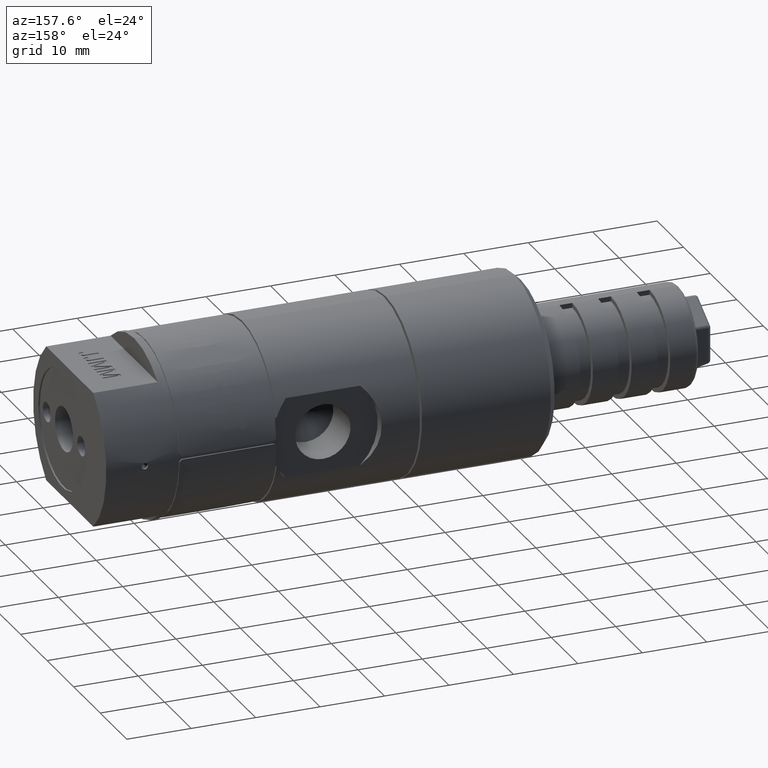
[diagram: clean part render]
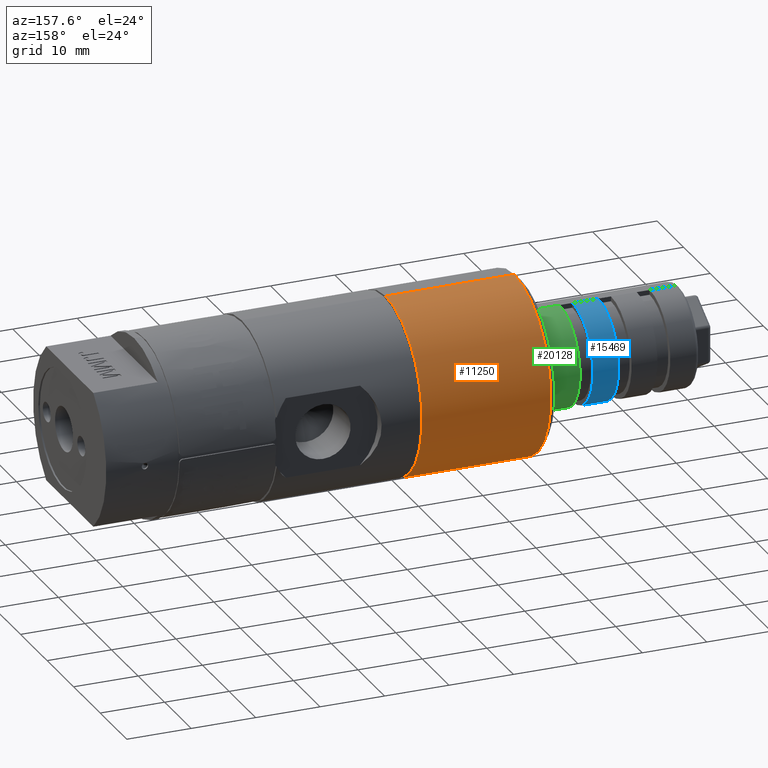
[diagram: same view with three faces highlighted in distinct colors, each labeled with its STEP entity id]
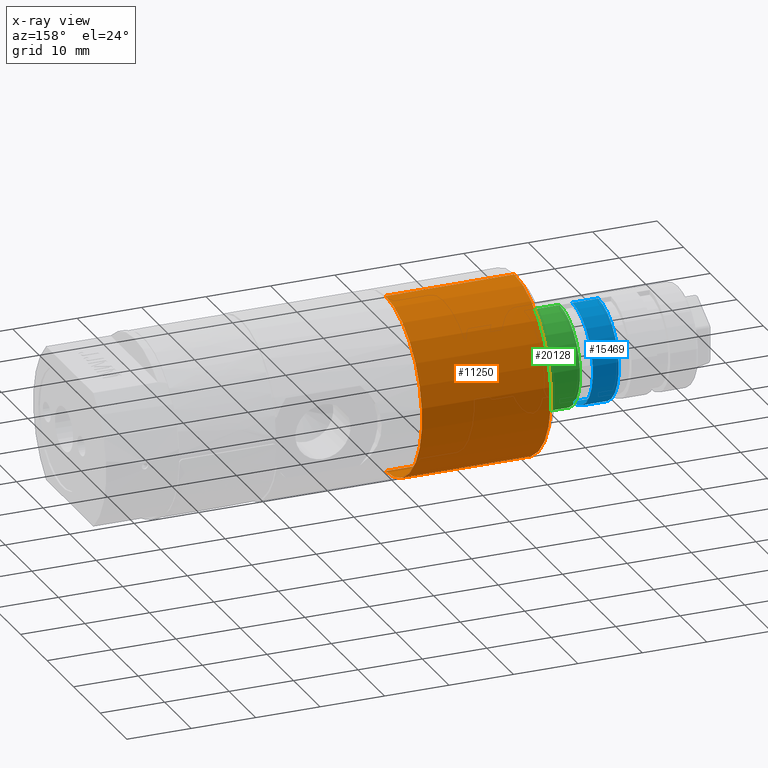
[diagram: x-ray of the same camera — body ghosted, the three highlighted faces saturated]
A machine part, auxiliary view with three faces highlighted in distinct colors.
The next image is the same camera in x-ray (body ghosted, the three faces saturated) — at least one of them is partly hidden behind the body in this view.
Their STEP definitions:

[orange] entity #11250 — the highlighted cylindrical surface (partial cylindrical patch) has radius 13.75 mm, axis along (1, 0, 0).
#1196 = VERTEX_POINT ( 'NONE', #4997 ) ;
#1318 = ORIENTED_EDGE ( 'NONE', *, *, #5313, .F. ) ;
#1971 = LINE ( 'NONE', #17541, #11476 ) ;
#2315 = CARTESIAN_POINT ( 'NONE',  ( -49.00000000000000000, 0.0000000000000000000, -13.75000000000000000 ) ) ;
#3284 = LINE ( 'NONE', #12969, #10447 ) ;
#4316 = DIRECTION ( 'NONE',  ( 1.000000000000000000, -0.0000000000000000000, -0.0000000000000000000 ) ) ;
#4997 = CARTESIAN_POINT ( 'NONE',  ( -69.00000000000000000, 1.683889348827610700E-015, 13.75000000000000000 ) ) ;
#5161 = VERTEX_POINT ( 'NONE', #2315 ) ;
#5313 = EDGE_CURVE ( 'NONE', #20135, #5161, #1971, .T. ) ;
#5463 = ORIENTED_EDGE ( 'NONE', *, *, #14910, .T. ) ;
#6065 = AXIS2_PLACEMENT_3D ( 'NONE', #9580, #19516, #14570 ) ;
#6424 = CARTESIAN_POINT ( 'NONE',  ( -69.00000000000000000, 0.0000000000000000000, -13.75000000000000000 ) ) ;
#9474 = DIRECTION ( 'NONE',  ( 0.0000000000000000000, 0.0000000000000000000, -1.000000000000000000 ) ) ;
#9580 = CARTESIAN_POINT ( 'NONE',  ( -49.00000000000000000, 0.0000000000000000000, 0.0000000000000000000 ) ) ;
#10239 = ORIENTED_EDGE ( 'NONE', *, *, #18066, .T. ) ;
#10447 = VECTOR ( 'NONE', #20926, 1000.000000000000000 ) ;
#10777 = CARTESIAN_POINT ( 'NONE',  ( -49.00000000000000000, 1.683889348827610700E-015, 13.75000000000000000 ) ) ;
#10902 = AXIS2_PLACEMENT_3D ( 'NONE', #19099, #14458, #9474 ) ;
#11250 = ADVANCED_FACE ( 'NONE', ( #14283 ), #13227, .T. ) ;
#11476 = VECTOR ( 'NONE', #12657, 1000.000000000000000 ) ;
#12143 = EDGE_LOOP ( 'NONE', ( #5463, #10239, #16101, #1318 ) ) ;
#12356 = CIRCLE ( 'NONE', #10902, 13.75000000000000000 ) ;
#12657 = DIRECTION ( 'NONE',  ( 1.000000000000000000, 0.0000000000000000000, 0.0000000000000000000 ) ) ;
#12969 = CARTESIAN_POINT ( 'NONE',  ( -49.00000000000000000, 1.683889348827610700E-015, 13.75000000000000000 ) ) ;
#13227 = CYLINDRICAL_SURFACE ( 'NONE', #6065, 13.75000000000000000 ) ;
#14176 = CARTESIAN_POINT ( 'NONE',  ( -69.00000000000000000, 0.0000000000000000000, 0.0000000000000000000 ) ) ;
#14219 = AXIS2_PLACEMENT_3D ( 'NONE', #14176, #4316, #17690 ) ;
#14283 = FACE_OUTER_BOUND ( 'NONE', #12143, .T. ) ;
#14458 = DIRECTION ( 'NONE',  ( 1.000000000000000000, 0.0000000000000000000, 0.0000000000000000000 ) ) ;
#14570 = DIRECTION ( 'NONE',  ( 0.0000000000000000000, 0.0000000000000000000, -1.000000000000000000 ) ) ;
#14831 = EDGE_CURVE ( 'NONE', #5161, #19063, #12356, .T. ) ;
#14910 = EDGE_CURVE ( 'NONE', #20135, #1196, #19541, .T. ) ;
#16101 = ORIENTED_EDGE ( 'NONE', *, *, #14831, .F. ) ;
#17541 = CARTESIAN_POINT ( 'NONE',  ( -49.00000000000000000, 0.0000000000000000000, -13.75000000000000000 ) ) ;
#17690 = DIRECTION ( 'NONE',  ( 0.0000000000000000000, 0.0000000000000000000, 1.000000000000000000 ) ) ;
#18066 = EDGE_CURVE ( 'NONE', #1196, #19063, #3284, .T. ) ;
#19063 = VERTEX_POINT ( 'NONE', #10777 ) ;
#19099 = CARTESIAN_POINT ( 'NONE',  ( -49.00000000000000000, 0.0000000000000000000, 0.0000000000000000000 ) ) ;
#19516 = DIRECTION ( 'NONE',  ( 1.000000000000000000, 0.0000000000000000000, 0.0000000000000000000 ) ) ;
#19541 = CIRCLE ( 'NONE', #14219, 13.75000000000000000 ) ;
#20135 = VERTEX_POINT ( 'NONE', #6424 ) ;
#20926 = DIRECTION ( 'NONE',  ( 1.000000000000000000, 0.0000000000000000000, 0.0000000000000000000 ) ) ;

[blue] entity #15469 — the highlighted cylindrical surface (partial cylindrical patch) has radius 7.75 mm, axis along (1, -0, 0).
#1783 = LINE ( 'NONE', #8791, #21301 ) ;
#2427 = EDGE_CURVE ( 'NONE', #18062, #14607, #1783, .T. ) ;
#2878 = AXIS2_PLACEMENT_3D ( 'NONE', #5400, #8474, #15038 ) ;
#3117 = CARTESIAN_POINT ( 'NONE',  ( -82.00000000000000000, 1.141301686302881900E-014, -7.750000000000000000 ) ) ;
#3132 = EDGE_CURVE ( 'NONE', #14607, #6362, #17171, .T. ) ;
#4679 = DIRECTION ( 'NONE',  ( -1.000000000000000000, 5.228563909572969700E-017, -2.111368100172860100E-017 ) ) ;
#5400 = CARTESIAN_POINT ( 'NONE',  ( -82.00000000000000000, -3.783160786527994800E-015, -6.812211817896859700E-015 ) ) ;
#5431 = CARTESIAN_POINT ( 'NONE',  ( -94.50000000000000000, -1.523845513085402500E-016, -7.750000000000014200 ) ) ;
#5721 = VERTEX_POINT ( 'NONE', #3117 ) ;
#5727 = DIRECTION ( 'NONE',  ( 1.000000000000000000, -5.228563909572969700E-017, 2.111368100172860100E-017 ) ) ;
#6143 = EDGE_LOOP ( 'NONE', ( #11828, #9277, #18403, #8846 ) ) ;
#6362 = VERTEX_POINT ( 'NONE', #18005 ) ;
#6415 = CARTESIAN_POINT ( 'NONE',  ( -78.00000000000000000, -3.783160786527994800E-015, -6.812211817896859700E-015 ) ) ;
#8220 = EDGE_CURVE ( 'NONE', #18062, #5721, #15581, .T. ) ;
#8474 = DIRECTION ( 'NONE',  ( -1.000000000000000000, 5.228563909572969700E-017, -2.111368100172860100E-017 ) ) ;
#8791 = CARTESIAN_POINT ( 'NONE',  ( -94.50000000000000000, 4.740581514989728800E-016, 7.749999999999985800 ) ) ;
#8846 = ORIENTED_EDGE ( 'NONE', *, *, #15267, .F. ) ;
#9277 = ORIENTED_EDGE ( 'NONE', *, *, #2427, .T. ) ;
#10212 = AXIS2_PLACEMENT_3D ( 'NONE', #6415, #4679, #19482 ) ;
#11080 = LINE ( 'NONE', #5431, #16204 ) ;
#11113 = DIRECTION ( 'NONE',  ( 1.000000000000000000, -5.228563909572969700E-017, 2.111368100172860100E-017 ) ) ;
#11301 = CARTESIAN_POINT ( 'NONE',  ( -78.00000000000000000, -1.632103676316759900E-015, 7.750000000000000000 ) ) ;
#11828 = ORIENTED_EDGE ( 'NONE', *, *, #8220, .F. ) ;
#11974 = DIRECTION ( 'NONE',  ( 1.000000000000000000, -5.228563909572969700E-017, 2.111368100172860100E-017 ) ) ;
#12699 = AXIS2_PLACEMENT_3D ( 'NONE', #20863, #11113, #17589 ) ;
#14429 = CARTESIAN_POINT ( 'NONE',  ( -82.00000000000000000, 5.306790227590468900E-015, 7.750000000000000000 ) ) ;
#14607 = VERTEX_POINT ( 'NONE', #11301 ) ;
#15038 = DIRECTION ( 'NONE',  ( 0.0000000000000000000, -2.081668171172167900E-017, 1.000000000000000000 ) ) ;
#15267 = EDGE_CURVE ( 'NONE', #5721, #6362, #11080, .T. ) ;
#15469 = ADVANCED_FACE ( 'NONE', ( #16466 ), #15968, .T. ) ;
#15581 = CIRCLE ( 'NONE', #2878, 7.750000000000000000 ) ;
#15968 = CYLINDRICAL_SURFACE ( 'NONE', #12699, 7.750000000000000000 ) ;
#16204 = VECTOR ( 'NONE', #11974, 1000.000000000000000 ) ;
#16466 = FACE_OUTER_BOUND ( 'NONE', #6143, .T. ) ;
#17171 = CIRCLE ( 'NONE', #10212, 7.750000000000000000 ) ;
#17589 = DIRECTION ( 'NONE',  ( 0.0000000000000000000, 2.081668171172164800E-017, -1.000000000000000000 ) ) ;
#18005 = CARTESIAN_POINT ( 'NONE',  ( -78.00000000000000000, 4.474122959121599900E-015, -7.750000000000000000 ) ) ;
#18062 = VERTEX_POINT ( 'NONE', #14429 ) ;
#18403 = ORIENTED_EDGE ( 'NONE', *, *, #3132, .T. ) ;
#19482 = DIRECTION ( 'NONE',  ( 0.0000000000000000000, -2.081668171172167900E-017, 1.000000000000000000 ) ) ;
#20863 = CARTESIAN_POINT ( 'NONE',  ( -94.50000000000000000, -3.137138345743829900E-016, -1.375110572180409900E-014 ) ) ;
#21301 = VECTOR ( 'NONE', #5727, 1000.000000000000000 ) ;

[green] entity #20128 — the highlighted cylindrical surface (partial cylindrical patch) has radius 7.75 mm, axis along (1, -0, 0).
#1577 = CARTESIAN_POINT ( 'NONE',  ( -70.50000000000000000, -3.783160786527999500E-015, -2.068999962571129800E-014 ) ) ;
#1630 = ORIENTED_EDGE ( 'NONE', *, *, #17881, .T. ) ;
#1641 = DIRECTION ( 'NONE',  ( 0.0000000000000000000, -2.081668171172167900E-017, 1.000000000000000000 ) ) ;
#1721 = VECTOR ( 'NONE', #20427, 1000.000000000000000 ) ;
#2154 = CYLINDRICAL_SURFACE ( 'NONE', #12167, 7.750000000000000000 ) ;
#3990 = LINE ( 'NONE', #21314, #14306 ) ;
#4549 = DIRECTION ( 'NONE',  ( 1.000000000000000000, -5.228563909572969700E-017, 2.111368100172860100E-017 ) ) ;
#4605 = AXIS2_PLACEMENT_3D ( 'NONE', #19951, #11773, #13432 ) ;
#4719 = VERTEX_POINT ( 'NONE', #6589 ) ;
#5015 = DIRECTION ( 'NONE',  ( -1.000000000000000000, 5.228563909572969700E-017, -2.111368100172860100E-017 ) ) ;
#6589 = CARTESIAN_POINT ( 'NONE',  ( -76.00000000000000000, 5.306790227590468900E-015, 7.750000000000000000 ) ) ;
#9555 = CARTESIAN_POINT ( 'NONE',  ( -94.50000000000000000, -3.137138345743829900E-016, -1.375110572180409900E-014 ) ) ;
#10185 = EDGE_CURVE ( 'NONE', #14921, #15300, #3990, .T. ) ;
#10639 = FACE_OUTER_BOUND ( 'NONE', #15219, .T. ) ;
#11434 = AXIS2_PLACEMENT_3D ( 'NONE', #1577, #5015, #1641 ) ;
#11502 = DIRECTION ( 'NONE',  ( 1.000000000000000000, -5.228563909572969700E-017, 2.111368100172860100E-017 ) ) ;
#11773 = DIRECTION ( 'NONE',  ( -1.000000000000000000, 5.228563909572969700E-017, -2.111368100172860100E-017 ) ) ;
#12127 = VERTEX_POINT ( 'NONE', #21226 ) ;
#12167 = AXIS2_PLACEMENT_3D ( 'NONE', #9555, #4549, #21055 ) ;
#12335 = CARTESIAN_POINT ( 'NONE',  ( -94.50000000000000000, 4.740581514989728800E-016, 7.749999999999985800 ) ) ;
#13432 = DIRECTION ( 'NONE',  ( 0.0000000000000000000, -2.081668171172167900E-017, 1.000000000000000000 ) ) ;
#13550 = LINE ( 'NONE', #12335, #1721 ) ;
#13833 = EDGE_CURVE ( 'NONE', #12127, #15300, #16492, .T. ) ;
#14306 = VECTOR ( 'NONE', #11502, 1000.000000000000000 ) ;
#14369 = ORIENTED_EDGE ( 'NONE', *, *, #13833, .T. ) ;
#14921 = VERTEX_POINT ( 'NONE', #17616 ) ;
#15219 = EDGE_LOOP ( 'NONE', ( #15559, #1630, #14369, #19808 ) ) ;
#15300 = VERTEX_POINT ( 'NONE', #15437 ) ;
#15437 = CARTESIAN_POINT ( 'NONE',  ( -70.50000000000000000, -7.928836302312266800E-016, -7.750000000000020400 ) ) ;
#15559 = ORIENTED_EDGE ( 'NONE', *, *, #18839, .F. ) ;
#16492 = CIRCLE ( 'NONE', #11434, 7.750000000000000000 ) ;
#16582 = CIRCLE ( 'NONE', #4605, 7.750000000000000000 ) ;
#17616 = CARTESIAN_POINT ( 'NONE',  ( -76.00000000000000000, 7.943569911075220400E-015, -7.750000000000000000 ) ) ;
#17881 = EDGE_CURVE ( 'NONE', #4719, #12127, #13550, .T. ) ;
#18839 = EDGE_CURVE ( 'NONE', #4719, #14921, #16582, .T. ) ;
#19808 = ORIENTED_EDGE ( 'NONE', *, *, #10185, .F. ) ;
#19951 = CARTESIAN_POINT ( 'NONE',  ( -76.00000000000000000, -3.783160786527999500E-015, -2.068999962571129800E-014 ) ) ;
#20128 = ADVANCED_FACE ( 'NONE', ( #10639 ), #2154, .T. ) ;
#20427 = DIRECTION ( 'NONE',  ( 1.000000000000000000, -5.228563909572969700E-017, 2.111368100172860100E-017 ) ) ;
#21055 = DIRECTION ( 'NONE',  ( 0.0000000000000000000, 2.081668171172164800E-017, -1.000000000000000000 ) ) ;
#21226 = CARTESIAN_POINT ( 'NONE',  ( -70.50000000000000000, -1.664409274237175700E-016, 7.749999999999978700 ) ) ;
#21314 = CARTESIAN_POINT ( 'NONE',  ( -94.50000000000000000, -1.523845513085402500E-016, -7.750000000000014200 ) ) ;